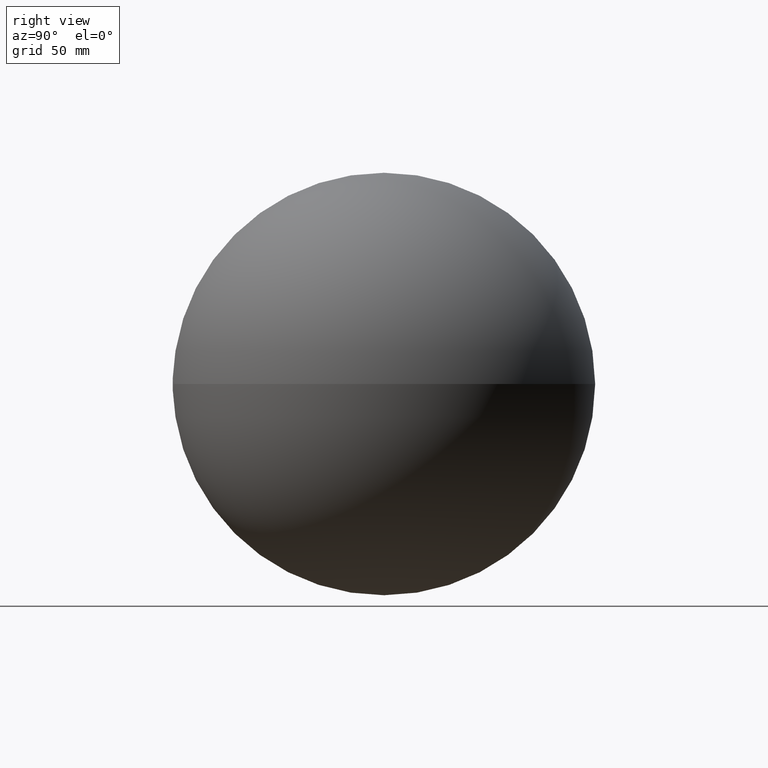
[diagram: clean part render]
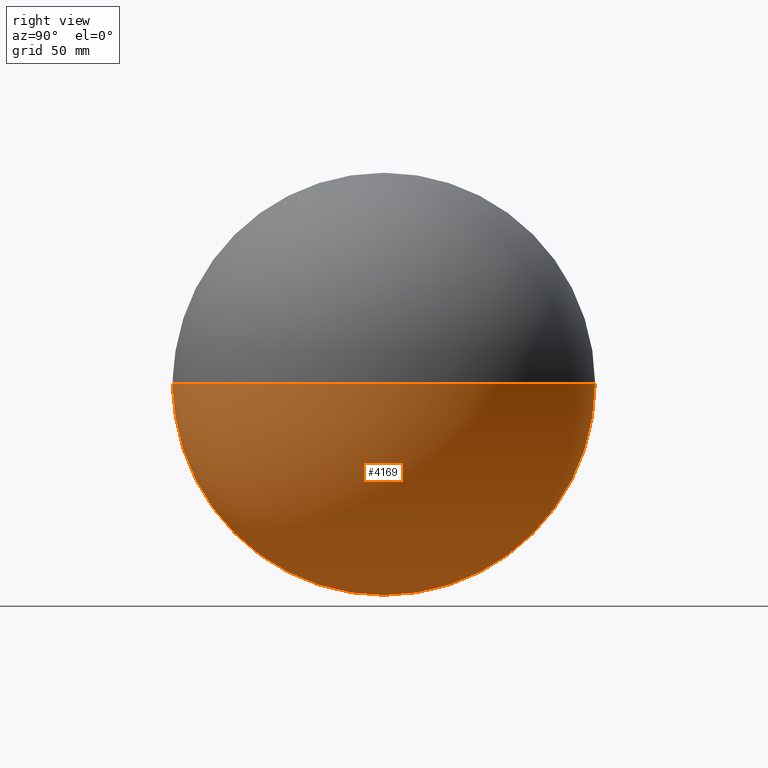
[diagram: same view with one face highlighted and labeled with its STEP entity id]
A machine part, right view. The second image highlights one B-rep face of the part: STEP entity #4169.
In plain terms, the highlighted spherical surface has radius 150 mm.
Its self-contained STEP definition (entity closure, byte-faithful):
#62 = SPHERICAL_SURFACE ( 'NONE', #9110, 150.0000000000000000 ) ;
#215 = AXIS2_PLACEMENT_3D ( 'NONE', #4534, #11411, #5492 ) ;
#490 = CARTESIAN_POINT ( 'NONE',  ( 0.0000000000000000000, 0.0000000000000000000, 0.0000000000000000000 ) ) ;
#693 = FACE_OUTER_BOUND ( 'NONE', #6530, .T. ) ;
#1152 = CARTESIAN_POINT ( 'NONE',  ( 0.0000000000000000000, -149.9248062085486600, 0.0000000000000000000 ) ) ;
#1498 = DIRECTION ( 'NONE',  ( -1.000000000000000000, 0.0000000000000000000, 1.224646799147353200E-016 ) ) ;
#2036 = CARTESIAN_POINT ( 'NONE',  ( -9.184850993605148700E-015, 150.0000000000000000, 0.0000000000000000000 ) ) ;
#2079 = VERTEX_POINT ( 'NONE', #10566 ) ;
#2158 = DIRECTION ( 'NONE',  ( 0.0000000000000000000, 0.0000000000000000000, 1.000000000000000000 ) ) ;
#2226 = VERTEX_POINT ( 'NONE', #3670 ) ;
#2621 = AXIS2_PLACEMENT_3D ( 'NONE', #490, #7356, #1498 ) ;
#2936 = CARTESIAN_POINT ( 'NONE',  ( 0.0000000000000000000, -149.9248062085486600, 0.0000000000000000000 ) ) ;
#3036 = ORIENTED_EDGE ( 'NONE', *, *, #6457, .F. ) ;
#3670 = CARTESIAN_POINT ( 'NONE',  ( 0.0000000000000000000, -149.9248062085486600, -4.748945496542716200 ) ) ;
#3939 = DIRECTION ( 'NONE',  ( 0.0000000000000000000, 0.0000000000000000000, 1.000000000000000000 ) ) ;
#4169 = ADVANCED_FACE ( 'NONE', ( #693 ), #62, .T. ) ;
#4342 = ORIENTED_EDGE ( 'NONE', *, *, #9988, .T. ) ;
#4472 = AXIS2_PLACEMENT_3D ( 'NONE', #2936, #9815, #3939 ) ;
#4534 = CARTESIAN_POINT ( 'NONE',  ( 0.0000000000000000000, 0.0000000000000000000, 0.0000000000000000000 ) ) ;
#5013 = AXIS2_PLACEMENT_3D ( 'NONE', #1152, #8036, #2158 ) ;
#5492 = DIRECTION ( 'NONE',  ( 1.000000000000000000, 0.0000000000000000000, 0.0000000000000000000 ) ) ;
#5978 = VERTEX_POINT ( 'NONE', #2036 ) ;
#6358 = CIRCLE ( 'NONE', #4472, 4.748945496542686900 ) ;
#6457 = EDGE_CURVE ( 'NONE', #5978, #8069, #9739, .T. ) ;
#6530 = EDGE_LOOP ( 'NONE', ( #3036, #4342, #8342, #11156 ) ) ;
#6957 = DIRECTION ( 'NONE',  ( -0.0000000000000000000, -0.0000000000000000000, -1.000000000000000000 ) ) ;
#7356 = DIRECTION ( 'NONE',  ( -1.224646799147353200E-016, 0.0000000000000000000, -1.000000000000000000 ) ) ;
#7966 = CARTESIAN_POINT ( 'NONE',  ( 0.0000000000000000000, 0.0000000000000000000, 0.0000000000000000000 ) ) ;
#8036 = DIRECTION ( 'NONE',  ( -0.0000000000000000000, 1.000000000000000000, -0.0000000000000000000 ) ) ;
#8069 = VERTEX_POINT ( 'NONE', #8982 ) ;
#8342 = ORIENTED_EDGE ( 'NONE', *, *, #10662, .T. ) ;
#8638 = CIRCLE ( 'NONE', #5013, 4.748945496542686900 ) ;
#8900 = EDGE_CURVE ( 'NONE', #2226, #8069, #6358, .T. ) ;
#8982 = CARTESIAN_POINT ( 'NONE',  ( -4.748945496542278400, -149.9248062085486600, 0.0000000000000000000 ) ) ;
#9110 = AXIS2_PLACEMENT_3D ( 'NONE', #7966, #6957, #11908 ) ;
#9739 = CIRCLE ( 'NONE', #215, 150.0000000000000000 ) ;
#9815 = DIRECTION ( 'NONE',  ( -0.0000000000000000000, 1.000000000000000000, -0.0000000000000000000 ) ) ;
#9988 = EDGE_CURVE ( 'NONE', #5978, #2079, #10526, .T. ) ;
#10526 = CIRCLE ( 'NONE', #2621, 150.0000000000000000 ) ;
#10566 = CARTESIAN_POINT ( 'NONE',  ( 4.748945496542278400, -149.9248062085486600, -5.815780901665740200E-016 ) ) ;
#10662 = EDGE_CURVE ( 'NONE', #2079, #2226, #8638, .T. ) ;
#11156 = ORIENTED_EDGE ( 'NONE', *, *, #8900, .T. ) ;
#11411 = DIRECTION ( 'NONE',  ( -0.0000000000000000000, 0.0000000000000000000, 1.000000000000000000 ) ) ;
#11908 = DIRECTION ( 'NONE',  ( -1.000000000000000000, 0.0000000000000000000, 0.0000000000000000000 ) ) ;